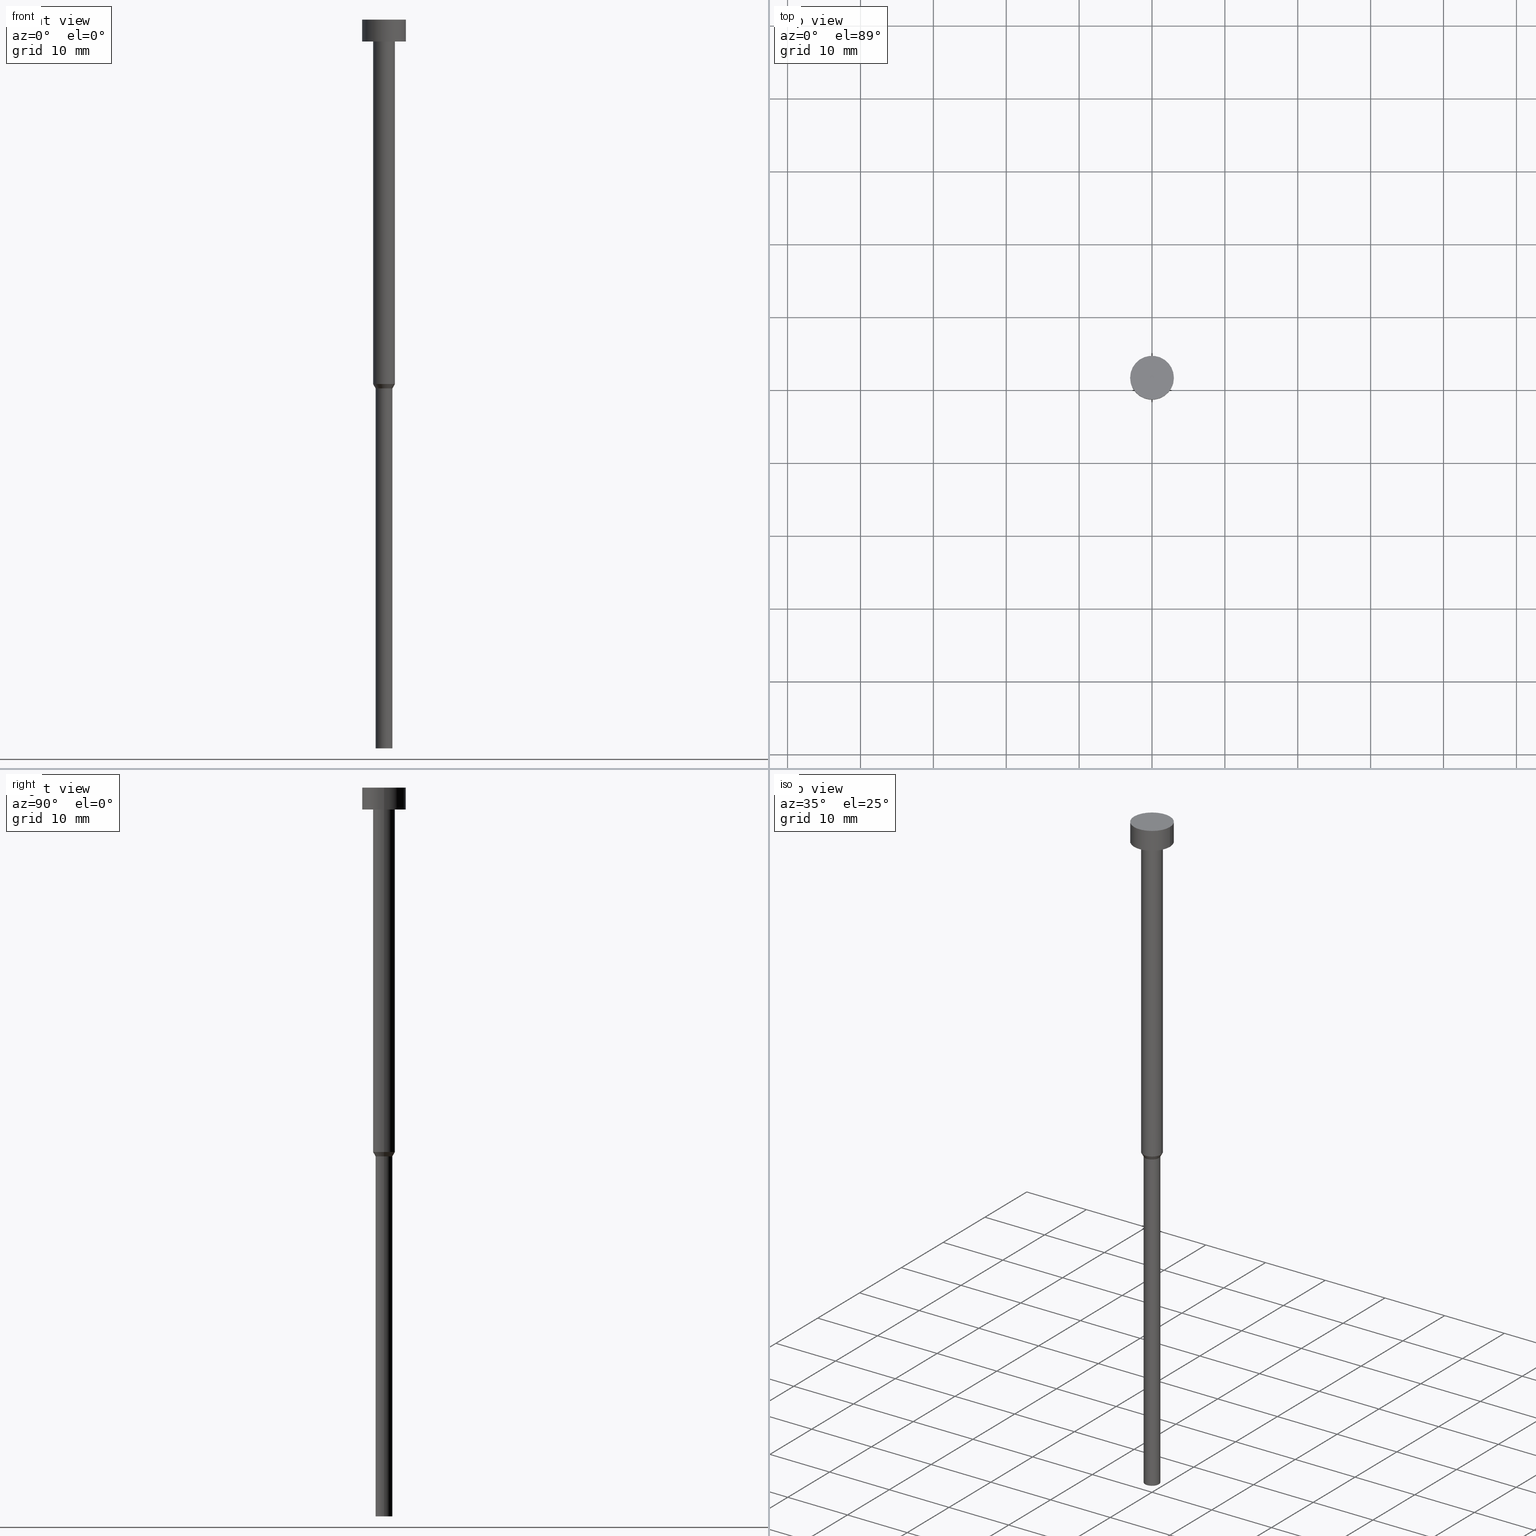
[diagram: canonical four-view strip — front | top / right | iso, engineering-drawing reading convention]
A machine part, canonical four-view strip (front | top / right | iso — engineering-drawing reading convention). The complete STEP part file that produces these views, byte-faithful:
ISO-10303-21;
HEADER;
FILE_DESCRIPTION (( 'STEP AP203' ),
    '1' );
FILE_NAME ('a1ff.STEP',
    '2023-02-13T10:55:24',
    ( '' ),
    ( '' ),
    'SwSTEP 2.0',
    'SolidWorks 2019',
    '' );
FILE_SCHEMA (( 'CONFIG_CONTROL_DESIGN' ));
ENDSEC;

DATA;
#1 = CC_DESIGN_PERSON_AND_ORGANIZATION_ASSIGNMENT ( #330, #200, ( #242 ) ) ;
#2 = PERSON_AND_ORGANIZATION_ROLE ( 'creator' ) ;
#3 = ADVANCED_FACE ( 'NONE', ( #328 ), #60, .T. ) ;
#4 = CARTESIAN_POINT ( 'NONE',  ( 1.149999999999999911, 0.000000000000000000, -100.0000000000000000 ) ) ;
#5 = VECTOR ( 'NONE', #156, 1000.000000000000000 ) ;
#6 = ORIENTED_EDGE ( 'NONE', *, *, #85, .T. ) ;
#7 = EDGE_LOOP ( 'NONE', ( #204, #314, #118, #327 ) ) ;
#8 = CARTESIAN_POINT ( 'NONE',  ( -1.149999999999999911, 1.408343819019456028E-16, -100.0000000000000000 ) ) ;
#9 = APPROVAL ( #315, 'NEUR�EN�' ) ;
#10 = AXIS2_PLACEMENT_3D ( 'NONE', #54, #140, #324 ) ;
#11 = CLOSED_SHELL ( 'NONE', ( #313, #143, #3, #17, #349, #323, #277, #263, #343, #246, #155 ) ) ;
#12 = ORIENTED_EDGE ( 'NONE', *, *, #31, .F. ) ;
#13 = DIRECTION ( 'NONE',  ( -0.000000000000000000, -0.000000000000000000, 1.000000000000000000 ) ) ;
#14 = FACE_OUTER_BOUND ( 'NONE', #305, .T. ) ;
#15 = ORIENTED_EDGE ( 'NONE', *, *, #318, .T. ) ;
#16 = DIRECTION ( 'NONE',  ( -0.000000000000000000, -0.000000000000000000, 1.000000000000000000 ) ) ;
#17 = ADVANCED_FACE ( 'NONE', ( #88 ), #306, .T. ) ;
#18 = SHAPE_DEFINITION_REPRESENTATION ( #150, #237 ) ;
#19 = CARTESIAN_POINT ( 'NONE',  ( 0.000000000000000000, 0.000000000000000000, -50.60621778264910375 ) ) ;
#20 = CARTESIAN_POINT ( 'NONE',  ( 1.149999999999999911, 0.000000000000000000, -50.60621778264910375 ) ) ;
#21 = CC_DESIGN_PERSON_AND_ORGANIZATION_ASSIGNMENT ( #108, #186, ( #149 ) ) ;
#22 = AXIS2_PLACEMENT_3D ( 'NONE', #131, #75, #257 ) ;
#23 = DATE_AND_TIME ( #48, #332 ) ;
#24 = FACE_OUTER_BOUND ( 'NONE', #273, .T. ) ;
#25 = APPROVAL_ROLE ( '' ) ;
#26 = COORDINATED_UNIVERSAL_TIME_OFFSET ( 1, 0, .AHEAD. ) ;
#27 = EDGE_CURVE ( 'NONE', #32, #310, #51, .T. ) ;
#28 = COORDINATED_UNIVERSAL_TIME_OFFSET ( 1, 0, .AHEAD. ) ;
#29 = CIRCLE ( 'NONE', #300, 1.500000000000000000 ) ;
#30 = CIRCLE ( 'NONE', #342, 1.500000000000000000 ) ;
#31 = EDGE_CURVE ( 'NONE', #76, #115, #296, .T. ) ;
#32 = VERTEX_POINT ( 'NONE', #353 ) ;
#33 = ORIENTED_EDGE ( 'NONE', *, *, #134, .T. ) ;
#34 = EDGE_LOOP ( 'NONE', ( #137, #167, #112, #173 ) ) ;
#35 = VERTEX_POINT ( 'NONE', #238 ) ;
#36 = EDGE_CURVE ( 'NONE', #151, #281, #153, .T. ) ;
#37 = ORIENTED_EDGE ( 'NONE', *, *, #270, .T. ) ;
#38 = DIRECTION ( 'NONE',  ( 1.000000000000000000, 0.000000000000000000, 0.000000000000000000 ) ) ;
#39 = CARTESIAN_POINT ( 'NONE',  ( 0.000000000000000000, 0.000000000000000000, -3.000000000000000888 ) ) ;
#40 = AXIS2_PLACEMENT_3D ( 'NONE', #251, #96, #236 ) ;
#41 = ORIENTED_EDGE ( 'NONE', *, *, #206, .T. ) ;
#42 = APPLICATION_CONTEXT ( 'configuration controlled 3d designs of mechanical parts and assemblies' ) ;
#43 = CARTESIAN_POINT ( 'NONE',  ( 0.000000000000000000, 0.000000000000000000, 0.000000000000000000 ) ) ;
#44 = CIRCLE ( 'NONE', #126, 3.000000000000000000 ) ;
#45 = CC_DESIGN_APPROVAL ( #63, ( #149 ) ) ;
#46 = DIRECTION ( 'NONE',  ( -0.000000000000000000, -0.000000000000000000, 1.000000000000000000 ) ) ;
#47 = CARTESIAN_POINT ( 'NONE',  ( 0.000000000000000000, 0.000000000000000000, -3.000000000000000888 ) ) ;
#48 = CALENDAR_DATE ( 2023, 13, 2 ) ;
#49 = DIRECTION ( 'NONE',  ( 1.000000000000000000, 0.000000000000000000, 0.000000000000000000 ) ) ;
#50 = LINE ( 'NONE', #107, #326 ) ;
#51 = CIRCLE ( 'NONE', #235, 3.000000000000000000 ) ;
#52 = AXIS2_PLACEMENT_3D ( 'NONE', #302, #117, #203 ) ;
#53 = EDGE_CURVE ( 'NONE', #176, #32, #350, .T. ) ;
#54 = CARTESIAN_POINT ( 'NONE',  ( 0.000000000000000000, 0.000000000000000000, -50.00000000000000000 ) ) ;
#55 = DIRECTION ( 'NONE',  ( -0.000000000000000000, -0.000000000000000000, 1.000000000000000000 ) ) ;
#56 = PERSON_AND_ORGANIZATION ( #79, #227 ) ;
#57 = AXIS2_PLACEMENT_3D ( 'NONE', #154, #16, #72 ) ;
#58 = CYLINDRICAL_SURFACE ( 'NONE', #195, 1.149999999999999911 ) ;
#59 = LOCAL_TIME ( 11, 55, 24.00000000000000000, #26 ) ;
#60 = CONICAL_SURFACE ( 'NONE', #341, 1.500000000000000000, 0.5235987755983008141 ) ;
#61 = DATE_AND_TIME ( #304, #286 ) ;
#62 = ORIENTED_EDGE ( 'NONE', *, *, #36, .T. ) ;
#63 = APPROVAL ( #219, 'NEUR�EN�' ) ;
#64 = CARTESIAN_POINT ( 'NONE',  ( 0.000000000000000000, 0.000000000000000000, 0.000000000000000000 ) ) ;
#65 = CARTESIAN_POINT ( 'NONE',  ( 0.000000000000000000, 0.000000000000000000, -50.60621778264910375 ) ) ;
#66 = PERSON_AND_ORGANIZATION_ROLE ( 'classification_officer' ) ;
#67 = FACE_OUTER_BOUND ( 'NONE', #229, .T. ) ;
#68 = ORIENTED_EDGE ( 'NONE', *, *, #77, .T. ) ;
#69 = CARTESIAN_POINT ( 'NONE',  ( 0.000000000000000000, 0.000000000000000000, 0.000000000000000000 ) ) ;
#70 = AXIS2_PLACEMENT_3D ( 'NONE', #64, #132, #338 ) ;
#71 = ORIENTED_EDGE ( 'NONE', *, *, #270, .F. ) ;
#72 = DIRECTION ( 'NONE',  ( 1.000000000000000000, 0.000000000000000000, 0.000000000000000000 ) ) ;
#73 = CARTESIAN_POINT ( 'NONE',  ( 1.500000000000000000, 0.000000000000000000, -3.000000000000000888 ) ) ;
#74 = DIRECTION ( 'NONE',  ( 1.000000000000000000, 0.000000000000000000, 0.000000000000000000 ) ) ;
#75 = DIRECTION ( 'NONE',  ( -0.000000000000000000, -0.000000000000000000, 1.000000000000000000 ) ) ;
#76 = VERTEX_POINT ( 'NONE', #182 ) ;
#77 = EDGE_CURVE ( 'NONE', #95, #310, #291, .T. ) ;
#78 = CC_DESIGN_SECURITY_CLASSIFICATION ( #93, ( #242 ) ) ;
#79 = PERSON ( 'NEUR�EN�', 'NEUR�EN�', 'NEUR�EN�', ('NEUR�EN�'), ('NEUR�EN�'), ('NEUR�EN�') ) ;
#80 = DIRECTION ( 'NONE',  ( -0.000000000000000000, -0.000000000000000000, 1.000000000000000000 ) ) ;
#81 = COORDINATED_UNIVERSAL_TIME_OFFSET ( 1, 0, .AHEAD. ) ;
#82 = PERSON_AND_ORGANIZATION_ROLE ( 'design_owner' ) ;
#83 = EDGE_CURVE ( 'NONE', #334, #76, #50, .T. ) ;
#84 = ORIENTED_EDGE ( 'NONE', *, *, #287, .F. ) ;
#85 = EDGE_CURVE ( 'NONE', #95, #176, #266, .T. ) ;
#86 = SECURITY_CLASSIFICATION_LEVEL ( 'unclassified' ) ;
#87 = ORIENTED_EDGE ( 'NONE', *, *, #307, .T. ) ;
#88 = FACE_OUTER_BOUND ( 'NONE', #201, .T. ) ;
#89 =( GEOMETRIC_REPRESENTATION_CONTEXT ( 3 ) GLOBAL_UNCERTAINTY_ASSIGNED_CONTEXT ( ( #187 ) ) GLOBAL_UNIT_ASSIGNED_CONTEXT ( ( #253, #114, #308 ) ) REPRESENTATION_CONTEXT ( 'NONE', 'WORKASPACE' ) );
#90 = DIRECTION ( 'NONE',  ( 1.000000000000000000, 0.000000000000000000, 0.000000000000000000 ) ) ;
#91 = CIRCLE ( 'NONE', #283, 1.500000000000000000 ) ;
#92 = CARTESIAN_POINT ( 'NONE',  ( 1.500000000000000000, 0.000000000000000000, 0.000000000000000000 ) ) ;
#93 = SECURITY_CLASSIFICATION ( '', '', #86 ) ;
#94 = ORIENTED_EDGE ( 'NONE', *, *, #77, .F. ) ;
#95 = VERTEX_POINT ( 'NONE', #230 ) ;
#96 = DIRECTION ( 'NONE',  ( -0.000000000000000000, -0.000000000000000000, 1.000000000000000000 ) ) ;
#97 = PRODUCT_RELATED_PRODUCT_CATEGORY ( 'detail', '', ( #202 ) ) ;
#98 = ORIENTED_EDGE ( 'NONE', *, *, #190, .F. ) ;
#99 = DIRECTION ( 'NONE',  ( 1.000000000000000000, 0.000000000000000000, 0.000000000000000000 ) ) ;
#100 = CARTESIAN_POINT ( 'NONE',  ( 0.000000000000000000, 0.000000000000000000, -3.673940397442059868E-16 ) ) ;
#101 = DIRECTION ( 'NONE',  ( -0.000000000000000000, -0.000000000000000000, 1.000000000000000000 ) ) ;
#102 = EDGE_CURVE ( 'NONE', #76, #281, #340, .T. ) ;
#103 = EDGE_LOOP ( 'NONE', ( #272, #71 ) ) ;
#104 = CYLINDRICAL_SURFACE ( 'NONE', #133, 3.000000000000000000 ) ;
#105 = VECTOR ( 'NONE', #163, 1000.000000000000000 ) ;
#106 = APPROVAL_DATE_TIME ( #317, #63 ) ;
#107 = CARTESIAN_POINT ( 'NONE',  ( -1.149999999999999911, 1.408343819019456028E-16, 0.000000000000000000 ) ) ;
#108 = PERSON_AND_ORGANIZATION ( #79, #227 ) ;
#109 = ORIENTED_EDGE ( 'NONE', *, *, #53, .T. ) ;
#110 = AXIS2_PLACEMENT_3D ( 'NONE', #65, #279, #325 ) ;
#111 = APPROVAL_DATE_TIME ( #280, #217 ) ;
#112 = ORIENTED_EDGE ( 'NONE', *, *, #188, .T. ) ;
#113 = AXIS2_PLACEMENT_3D ( 'NONE', #129, #175, #38 ) ;
#114 =( NAMED_UNIT ( * ) PLANE_ANGLE_UNIT ( ) SI_UNIT ( $, .RADIAN. ) );
#115 = VERTEX_POINT ( 'NONE', #20 ) ;
#116 = DIRECTION ( 'NONE',  ( -0.000000000000000000, -0.000000000000000000, 1.000000000000000000 ) ) ;
#117 = DIRECTION ( 'NONE',  ( 0.000000000000000000, 0.000000000000000000, -1.000000000000000000 ) ) ;
#118 = ORIENTED_EDGE ( 'NONE', *, *, #36, .F. ) ;
#119 = PLANE ( 'NONE',  #120 ) ;
#120 = AXIS2_PLACEMENT_3D ( 'NONE', #225, #249, #223 ) ;
#121 = MECHANICAL_CONTEXT ( 'NONE', #211, 'mechanical' ) ;
#122 = CARTESIAN_POINT ( 'NONE',  ( 1.500000000000000000, 0.000000000000000000, -50.00000000000000000 ) ) ;
#123 = DIRECTION ( 'NONE',  ( 1.000000000000000000, 0.000000000000000000, 0.000000000000000000 ) ) ;
#124 = EDGE_LOOP ( 'NONE', ( #33, #250 ) ) ;
#125 = DIRECTION ( 'NONE',  ( 1.000000000000000000, 0.000000000000000000, 0.000000000000000000 ) ) ;
#126 = AXIS2_PLACEMENT_3D ( 'NONE', #47, #316, #214 ) ;
#127 = APPROVAL_PERSON_ORGANIZATION ( #239, #63, #25 ) ;
#128 = ORIENTED_EDGE ( 'NONE', *, *, #295, .T. ) ;
#129 = CARTESIAN_POINT ( 'NONE',  ( 0.000000000000000000, 0.000000000000000000, -1.836970198721029934E-16 ) ) ;
#130 = CC_DESIGN_PERSON_AND_ORGANIZATION_ASSIGNMENT ( #231, #82, ( #202 ) ) ;
#131 = CARTESIAN_POINT ( 'NONE',  ( 0.000000000000000000, 0.000000000000000000, -3.000000000000000888 ) ) ;
#132 = DIRECTION ( 'NONE',  ( -0.000000000000000000, -0.000000000000000000, 1.000000000000000000 ) ) ;
#133 = AXIS2_PLACEMENT_3D ( 'NONE', #43, #339, #347 ) ;
#134 = EDGE_CURVE ( 'NONE', #310, #32, #221, .T. ) ;
#135 = CARTESIAN_POINT ( 'NONE',  ( 0.000000000000000000, 0.000000000000000000, -100.0000000000000000 ) ) ;
#136 = APPROVAL_STATUS ( 'not_yet_approved' ) ;
#137 = ORIENTED_EDGE ( 'NONE', *, *, #102, .F. ) ;
#138 = LINE ( 'NONE', #241, #252 ) ;
#139 = CARTESIAN_POINT ( 'NONE',  ( -3.000000000000000000, 3.673940397442059868E-16, 0.000000000000000000 ) ) ;
#140 = DIRECTION ( 'NONE',  ( -0.000000000000000000, -0.000000000000000000, 1.000000000000000000 ) ) ;
#141 = AXIS2_PLACEMENT_3D ( 'NONE', #319, #46, #183 ) ;
#142 = PERSON_AND_ORGANIZATION ( #79, #227 ) ;
#143 = ADVANCED_FACE ( 'NONE', ( #348 ), #256, .T. ) ;
#144 = ORIENTED_EDGE ( 'NONE', *, *, #83, .T. ) ;
#145 = EDGE_LOOP ( 'NONE', ( #128, #168 ) ) ;
#146 = CC_DESIGN_PERSON_AND_ORGANIZATION_ASSIGNMENT ( #56, #2, ( #242 ) ) ;
#147 = AXIS2_PLACEMENT_3D ( 'NONE', #100, #13, #207 ) ;
#148 = ORIENTED_EDGE ( 'NONE', *, *, #53, .F. ) ;
#149 = PRODUCT_DEFINITION ( 'NEZN�M�', '', #242, #162 ) ;
#150 = PRODUCT_DEFINITION_SHAPE ( 'NONE', 'NONE',  #149 ) ;
#151 = VERTEX_POINT ( 'NONE', #122 ) ;
#152 = CARTESIAN_POINT ( 'NONE',  ( -3.000000000000000000, 3.673940397442059868E-16, -3.000000000000000888 ) ) ;
#153 = CIRCLE ( 'NONE', #10, 1.500000000000000000 ) ;
#154 = CARTESIAN_POINT ( 'NONE',  ( 0.000000000000000000, 0.000000000000000000, 0.000000000000000000 ) ) ;
#155 = ADVANCED_FACE ( 'NONE', ( #212 ), #259, .T. ) ;
#156 = DIRECTION ( 'NONE',  ( -0.000000000000000000, -0.000000000000000000, 1.000000000000000000 ) ) ;
#157 = DIRECTION ( 'NONE',  ( -0.000000000000000000, -0.000000000000000000, 1.000000000000000000 ) ) ;
#158 = FACE_OUTER_BOUND ( 'NONE', #34, .T. ) ;
#159 = CC_DESIGN_DATE_AND_TIME_ASSIGNMENT ( #23, #161, ( #149 ) ) ;
#160 = LOCAL_TIME ( 11, 55, 24.00000000000000000, #354 ) ;
#161 = DATE_TIME_ROLE ( 'creation_date' ) ;
#162 = DESIGN_CONTEXT ( 'detailed design', #42, 'design' ) ;
#163 = DIRECTION ( 'NONE',  ( -0.000000000000000000, -0.000000000000000000, 1.000000000000000000 ) ) ;
#164 = DIRECTION ( 'NONE',  ( -0.000000000000000000, -0.000000000000000000, 1.000000000000000000 ) ) ;
#165 = CC_DESIGN_DATE_AND_TIME_ASSIGNMENT ( #61, #172, ( #93 ) ) ;
#166 = AXIS2_PLACEMENT_3D ( 'NONE', #19, #164, #215 ) ;
#167 = ORIENTED_EDGE ( 'NONE', *, *, #31, .T. ) ;
#168 = ORIENTED_EDGE ( 'NONE', *, *, #190, .T. ) ;
#169 = LOCAL_TIME ( 11, 55, 24.00000000000000000, #210 ) ;
#170 = CARTESIAN_POINT ( 'NONE',  ( 0.000000000000000000, 0.000000000000000000, 0.000000000000000000 ) ) ;
#171 = DIRECTION ( 'NONE',  ( -0.000000000000000000, -0.000000000000000000, 1.000000000000000000 ) ) ;
#172 = DATE_TIME_ROLE ( 'classification_date' ) ;
#173 = ORIENTED_EDGE ( 'NONE', *, *, #318, .F. ) ;
#174 = DIRECTION ( 'NONE',  ( -0.000000000000000000, -0.000000000000000000, 1.000000000000000000 ) ) ;
#175 = DIRECTION ( 'NONE',  ( 0.000000000000000000, -0.000000000000000000, 1.000000000000000000 ) ) ;
#176 = VERTEX_POINT ( 'NONE', #152 ) ;
#177 = DIRECTION ( 'NONE',  ( 0.5000000000000016653, 0.000000000000000000, 0.8660254037844377084 ) ) ;
#178 = DIRECTION ( 'NONE',  ( -0.000000000000000000, -0.000000000000000000, 1.000000000000000000 ) ) ;
#179 = EDGE_CURVE ( 'NONE', #334, #355, #213, .T. ) ;
#180 = ORIENTED_EDGE ( 'NONE', *, *, #295, .F. ) ;
#181 = LINE ( 'NONE', #344, #5 ) ;
#182 = CARTESIAN_POINT ( 'NONE',  ( -1.149999999999999911, 1.408343819019456028E-16, -50.60621778264910375 ) ) ;
#183 = DIRECTION ( 'NONE',  ( 1.000000000000000000, 0.000000000000000000, 0.000000000000000000 ) ) ;
#184 = ORIENTED_EDGE ( 'NONE', *, *, #179, .F. ) ;
#185 = VECTOR ( 'NONE', #177, 1000.000000000000000 ) ;
#186 = PERSON_AND_ORGANIZATION_ROLE ( 'creator' ) ;
#187 = UNCERTAINTY_MEASURE_WITH_UNIT (LENGTH_MEASURE( 1.000000000000000082E-05 ), #253, 'distance_accuracy_value', 'NONE');
#188 = EDGE_CURVE ( 'NONE', #115, #151, #234, .T. ) ;
#189 = DIRECTION ( 'NONE',  ( -0.000000000000000000, -0.000000000000000000, 1.000000000000000000 ) ) ;
#190 = EDGE_CURVE ( 'NONE', #35, #233, #91, .T. ) ;
#191 = ORIENTED_EDGE ( 'NONE', *, *, #83, .F. ) ;
#192 = ORIENTED_EDGE ( 'NONE', *, *, #307, .F. ) ;
#193 = FACE_OUTER_BOUND ( 'NONE', #103, .T. ) ;
#194 = PERSON_AND_ORGANIZATION ( #79, #227 ) ;
#195 = AXIS2_PLACEMENT_3D ( 'NONE', #69, #274, #90 ) ;
#196 = ORIENTED_EDGE ( 'NONE', *, *, #255, .T. ) ;
#197 = CIRCLE ( 'NONE', #333, 1.149999999999999911 ) ;
#198 = AXIS2_PLACEMENT_3D ( 'NONE', #170, #247, #331 ) ;
#199 = DIRECTION ( 'NONE',  ( -0.000000000000000000, -0.000000000000000000, 1.000000000000000000 ) ) ;
#200 = PERSON_AND_ORGANIZATION_ROLE ( 'design_supplier' ) ;
#201 = EDGE_LOOP ( 'NONE', ( #258, #144, #243, #285 ) ) ;
#202 = PRODUCT ( 'a1ff', 'a1ff', '', ( #121 ) ) ;
#203 = DIRECTION ( 'NONE',  ( -1.000000000000000000, 0.000000000000000000, -0.000000000000000000 ) ) ;
#204 = ORIENTED_EDGE ( 'NONE', *, *, #226, .T. ) ;
#205 = EDGE_LOOP ( 'NONE', ( #148, #37, #68, #220 ) ) ;
#206 = EDGE_CURVE ( 'NONE', #281, #35, #138, .T. ) ;
#207 = DIRECTION ( 'NONE',  ( 1.000000000000000000, 0.000000000000000000, 0.000000000000000000 ) ) ;
#208 = DIRECTION ( 'NONE',  ( 1.000000000000000000, 0.000000000000000000, 0.000000000000000000 ) ) ;
#209 = CARTESIAN_POINT ( 'NONE',  ( 0.000000000000000000, 0.000000000000000000, -3.000000000000000888 ) ) ;
#210 = COORDINATED_UNIVERSAL_TIME_OFFSET ( 1, 0, .AHEAD. ) ;
#211 = APPLICATION_CONTEXT ( 'configuration controlled 3d designs of mechanical parts and assemblies' ) ;
#212 = FACE_OUTER_BOUND ( 'NONE', #124, .T. ) ;
#213 = CIRCLE ( 'NONE', #40, 1.149999999999999911 ) ;
#214 = DIRECTION ( 'NONE',  ( 1.000000000000000000, 0.000000000000000000, 0.000000000000000000 ) ) ;
#215 = DIRECTION ( 'NONE',  ( 1.000000000000000000, 0.000000000000000000, 0.000000000000000000 ) ) ;
#216 = CYLINDRICAL_SURFACE ( 'NONE', #303, 1.500000000000000000 ) ;
#217 = APPROVAL ( #136, 'NEUR�EN�' ) ;
#218 = CC_DESIGN_APPROVAL ( #217, ( #242 ) ) ;
#219 = APPROVAL_STATUS ( 'not_yet_approved' ) ;
#220 = ORIENTED_EDGE ( 'NONE', *, *, #27, .F. ) ;
#221 = CIRCLE ( 'NONE', #147, 3.000000000000000000 ) ;
#222 = ORIENTED_EDGE ( 'NONE', *, *, #134, .F. ) ;
#223 = DIRECTION ( 'NONE',  ( -1.000000000000000000, 0.000000000000000000, -0.000000000000000000 ) ) ;
#224 = EDGE_LOOP ( 'NONE', ( #62, #41, #180, #192 ) ) ;
#225 = CARTESIAN_POINT ( 'NONE',  ( 0.000000000000000000, -3.000000000000000000, -3.000000000000000888 ) ) ;
#226 = EDGE_CURVE ( 'NONE', #115, #76, #311, .T. ) ;
#227 = ORGANIZATION ( 'NEUR�EN�', 'NEUR�EN�', '' ) ;
#228 = VECTOR ( 'NONE', #171, 1000.000000000000000 ) ;
#229 = EDGE_LOOP ( 'NONE', ( #84, #184 ) ) ;
#230 = CARTESIAN_POINT ( 'NONE',  ( 3.000000000000000000, 0.000000000000000000, -3.000000000000000888 ) ) ;
#231 = PERSON_AND_ORGANIZATION ( #79, #227 ) ;
#232 = CARTESIAN_POINT ( 'NONE',  ( 0.000000000000000000, 0.000000000000000000, 0.000000000000000000 ) ) ;
#233 = VERTEX_POINT ( 'NONE', #73 ) ;
#234 = LINE ( 'NONE', #337, #185 ) ;
#235 = AXIS2_PLACEMENT_3D ( 'NONE', #284, #101, #208 ) ;
#236 = DIRECTION ( 'NONE',  ( 1.000000000000000000, 0.000000000000000000, 0.000000000000000000 ) ) ;
#237 = ADVANCED_BREP_SHAPE_REPRESENTATION ( 'a1ff', ( #292, #198 ), #89 ) ;
#238 = CARTESIAN_POINT ( 'NONE',  ( -1.500000000000000000, 1.836970198721029934E-16, -3.000000000000000888 ) ) ;
#239 = PERSON_AND_ORGANIZATION ( #79, #227 ) ;
#240 = APPROVAL_ROLE ( '' ) ;
#241 = CARTESIAN_POINT ( 'NONE',  ( -1.500000000000000000, 1.836970198721029934E-16, 0.000000000000000000 ) ) ;
#242 = PRODUCT_DEFINITION_FORMATION_WITH_SPECIFIED_SOURCE ( 'LIBOVOLN�', '', #202, .NOT_KNOWN. ) ;
#243 = ORIENTED_EDGE ( 'NONE', *, *, #226, .F. ) ;
#244 = PLANE ( 'NONE',  #52 ) ;
#245 = APPLICATION_PROTOCOL_DEFINITION ( 'international standard', 'config_control_design', 1994, #211 ) ;
#246 = ADVANCED_FACE ( 'NONE', ( #345 ), #104, .T. ) ;
#247 = DIRECTION ( 'NONE',  ( 0.000000000000000000, 0.000000000000000000, 1.000000000000000000 ) ) ;
#248 = ORIENTED_EDGE ( 'NONE', *, *, #179, .T. ) ;
#249 = DIRECTION ( 'NONE',  ( 0.000000000000000000, 0.000000000000000000, -1.000000000000000000 ) ) ;
#250 = ORIENTED_EDGE ( 'NONE', *, *, #27, .T. ) ;
#251 = CARTESIAN_POINT ( 'NONE',  ( 0.000000000000000000, 0.000000000000000000, -100.0000000000000000 ) ) ;
#252 = VECTOR ( 'NONE', #116, 1000.000000000000000 ) ;
#253 =( LENGTH_UNIT ( ) NAMED_UNIT ( * ) SI_UNIT ( .MILLI., .METRE. ) );
#254 = CYLINDRICAL_SURFACE ( 'NONE', #297, 3.000000000000000000 ) ;
#255 = EDGE_CURVE ( 'NONE', #355, #115, #181, .T. ) ;
#256 = CYLINDRICAL_SURFACE ( 'NONE', #57, 1.500000000000000000 ) ;
#257 = DIRECTION ( 'NONE',  ( 1.000000000000000000, 0.000000000000000000, 0.000000000000000000 ) ) ;
#258 = ORIENTED_EDGE ( 'NONE', *, *, #287, .T. ) ;
#259 = PLANE ( 'NONE',  #113 ) ;
#260 = APPROVAL_PERSON_ORGANIZATION ( #142, #9, #265 ) ;
#261 = VECTOR ( 'NONE', #336, 1000.000000000000000 ) ;
#262 = CARTESIAN_POINT ( 'NONE',  ( -1.500000000000000000, 1.836970198721029934E-16, -50.00000000000000000 ) ) ;
#263 = ADVANCED_FACE ( 'NONE', ( #24 ), #216, .T. ) ;
#264 = CARTESIAN_POINT ( 'NONE',  ( -1.500000000000000000, 1.836970198721029934E-16, -50.00000000000000000 ) ) ;
#265 = APPROVAL_ROLE ( '' ) ;
#266 = CIRCLE ( 'NONE', #22, 3.000000000000000000 ) ;
#267 = PERSON_AND_ORGANIZATION ( #79, #227 ) ;
#268 = DIRECTION ( 'NONE',  ( 1.000000000000000000, 0.000000000000000000, 0.000000000000000000 ) ) ;
#269 = DIRECTION ( 'NONE',  ( 1.000000000000000000, 0.000000000000000000, 0.000000000000000000 ) ) ;
#270 = EDGE_CURVE ( 'NONE', #176, #95, #44, .T. ) ;
#271 = CC_DESIGN_APPROVAL ( #9, ( #93 ) ) ;
#272 = ORIENTED_EDGE ( 'NONE', *, *, #85, .F. ) ;
#273 = EDGE_LOOP ( 'NONE', ( #301, #15, #87, #98 ) ) ;
#274 = DIRECTION ( 'NONE',  ( -0.000000000000000000, -0.000000000000000000, 1.000000000000000000 ) ) ;
#275 = VECTOR ( 'NONE', #80, 1000.000000000000000 ) ;
#276 = EDGE_LOOP ( 'NONE', ( #6, #109, #222, #94 ) ) ;
#277 = ADVANCED_FACE ( 'NONE', ( #158 ), #288, .T. ) ;
#278 = CARTESIAN_POINT ( 'NONE',  ( 0.000000000000000000, 0.000000000000000000, -50.00000000000000000 ) ) ;
#279 = DIRECTION ( 'NONE',  ( -0.000000000000000000, -0.000000000000000000, 1.000000000000000000 ) ) ;
#280 = DATE_AND_TIME ( #320, #160 ) ;
#281 = VERTEX_POINT ( 'NONE', #264 ) ;
#282 = CC_DESIGN_PERSON_AND_ORGANIZATION_ASSIGNMENT ( #194, #66, ( #93 ) ) ;
#283 = AXIS2_PLACEMENT_3D ( 'NONE', #39, #189, #268 ) ;
#284 = CARTESIAN_POINT ( 'NONE',  ( 0.000000000000000000, 0.000000000000000000, -3.673940397442059868E-16 ) ) ;
#285 = ORIENTED_EDGE ( 'NONE', *, *, #255, .F. ) ;
#286 = LOCAL_TIME ( 11, 55, 24.00000000000000000, #28 ) ;
#287 = EDGE_CURVE ( 'NONE', #355, #334, #197, .T. ) ;
#288 = CONICAL_SURFACE ( 'NONE', #141, 1.500000000000000000, 0.5235987755983008141 ) ;
#289 = APPLICATION_PROTOCOL_DEFINITION ( 'international standard', 'config_control_design', 1994, #42 ) ;
#290 = CARTESIAN_POINT ( 'NONE',  ( 0.000000000000000000, 0.000000000000000000, 0.000000000000000000 ) ) ;
#291 = LINE ( 'NONE', #298, #105 ) ;
#292 = MANIFOLD_SOLID_BREP ( 'Rotovat1', #11 ) ;
#293 = APPROVAL_DATE_TIME ( #352, #9 ) ;
#294 = DIRECTION ( 'NONE',  ( -0.000000000000000000, -0.000000000000000000, 1.000000000000000000 ) ) ;
#295 = EDGE_CURVE ( 'NONE', #233, #35, #29, .T. ) ;
#296 = CIRCLE ( 'NONE', #166, 1.149999999999999911 ) ;
#297 = AXIS2_PLACEMENT_3D ( 'NONE', #232, #199, #123 ) ;
#298 = CARTESIAN_POINT ( 'NONE',  ( 3.000000000000000000, 0.000000000000000000, 0.000000000000000000 ) ) ;
#299 = CARTESIAN_POINT ( 'NONE',  ( 0.000000000000000000, 0.000000000000000000, -50.00000000000000000 ) ) ;
#300 = AXIS2_PLACEMENT_3D ( 'NONE', #209, #312, #74 ) ;
#301 = ORIENTED_EDGE ( 'NONE', *, *, #206, .F. ) ;
#302 = CARTESIAN_POINT ( 'NONE',  ( 0.000000000000000000, 0.000000000000000000, -100.0000000000000000 ) ) ;
#303 = AXIS2_PLACEMENT_3D ( 'NONE', #290, #294, #49 ) ;
#304 = CALENDAR_DATE ( 2023, 13, 2 ) ;
#305 = EDGE_LOOP ( 'NONE', ( #191, #248, #196, #12 ) ) ;
#306 = CYLINDRICAL_SURFACE ( 'NONE', #70, 1.149999999999999911 ) ;
#307 = EDGE_CURVE ( 'NONE', #151, #233, #321, .T. ) ;
#308 =( NAMED_UNIT ( * ) SI_UNIT ( $, .STERADIAN. ) SOLID_ANGLE_UNIT ( ) );
#309 = CARTESIAN_POINT ( 'NONE',  ( 3.000000000000000000, 0.000000000000000000, -3.673940397442059868E-16 ) ) ;
#310 = VERTEX_POINT ( 'NONE', #309 ) ;
#311 = CIRCLE ( 'NONE', #110, 1.149999999999999911 ) ;
#312 = DIRECTION ( 'NONE',  ( -0.000000000000000000, -0.000000000000000000, 1.000000000000000000 ) ) ;
#313 = ADVANCED_FACE ( 'NONE', ( #335 ), #254, .T. ) ;
#314 = ORIENTED_EDGE ( 'NONE', *, *, #102, .T. ) ;
#315 = APPROVAL_STATUS ( 'not_yet_approved' ) ;
#316 = DIRECTION ( 'NONE',  ( -0.000000000000000000, -0.000000000000000000, 1.000000000000000000 ) ) ;
#317 = DATE_AND_TIME ( #351, #59 ) ;
#318 = EDGE_CURVE ( 'NONE', #281, #151, #30, .T. ) ;
#319 = CARTESIAN_POINT ( 'NONE',  ( 0.000000000000000000, 0.000000000000000000, -50.00000000000000000 ) ) ;
#320 = CALENDAR_DATE ( 2023, 13, 2 ) ;
#321 = LINE ( 'NONE', #92, #228 ) ;
#322 = APPROVAL_PERSON_ORGANIZATION ( #267, #217, #240 ) ;
#323 = ADVANCED_FACE ( 'NONE', ( #14 ), #58, .T. ) ;
#324 = DIRECTION ( 'NONE',  ( 1.000000000000000000, 0.000000000000000000, 0.000000000000000000 ) ) ;
#325 = DIRECTION ( 'NONE',  ( 1.000000000000000000, 0.000000000000000000, 0.000000000000000000 ) ) ;
#326 = VECTOR ( 'NONE', #157, 1000.000000000000000 ) ;
#327 = ORIENTED_EDGE ( 'NONE', *, *, #188, .F. ) ;
#328 = FACE_OUTER_BOUND ( 'NONE', #7, .T. ) ;
#329 = FACE_BOUND ( 'NONE', #145, .T. ) ;
#330 = PERSON_AND_ORGANIZATION ( #79, #227 ) ;
#331 = DIRECTION ( 'NONE',  ( 1.000000000000000000, 0.000000000000000000, 0.000000000000000000 ) ) ;
#332 = LOCAL_TIME ( 11, 55, 24.00000000000000000, #81 ) ;
#333 = AXIS2_PLACEMENT_3D ( 'NONE', #135, #178, #125 ) ;
#334 = VERTEX_POINT ( 'NONE', #8 ) ;
#335 = FACE_OUTER_BOUND ( 'NONE', #276, .T. ) ;
#336 = DIRECTION ( 'NONE',  ( -0.5000000000000016653, 6.123233995736786990E-17, 0.8660254037844377084 ) ) ;
#337 = CARTESIAN_POINT ( 'NONE',  ( 1.500000000000000000, 0.000000000000000000, -50.00000000000000000 ) ) ;
#338 = DIRECTION ( 'NONE',  ( 1.000000000000000000, 0.000000000000000000, 0.000000000000000000 ) ) ;
#339 = DIRECTION ( 'NONE',  ( -0.000000000000000000, -0.000000000000000000, 1.000000000000000000 ) ) ;
#340 = LINE ( 'NONE', #262, #261 ) ;
#341 = AXIS2_PLACEMENT_3D ( 'NONE', #299, #55, #269 ) ;
#342 = AXIS2_PLACEMENT_3D ( 'NONE', #278, #174, #99 ) ;
#343 = ADVANCED_FACE ( 'NONE', ( #329, #193 ), #119, .T. ) ;
#344 = CARTESIAN_POINT ( 'NONE',  ( 1.149999999999999911, 0.000000000000000000, 0.000000000000000000 ) ) ;
#345 = FACE_OUTER_BOUND ( 'NONE', #205, .T. ) ;
#346 = CALENDAR_DATE ( 2023, 13, 2 ) ;
#347 = DIRECTION ( 'NONE',  ( 1.000000000000000000, 0.000000000000000000, 0.000000000000000000 ) ) ;
#348 = FACE_OUTER_BOUND ( 'NONE', #224, .T. ) ;
#349 = ADVANCED_FACE ( 'NONE', ( #67 ), #244, .T. ) ;
#350 = LINE ( 'NONE', #139, #275 ) ;
#351 = CALENDAR_DATE ( 2023, 13, 2 ) ;
#352 = DATE_AND_TIME ( #346, #169 ) ;
#353 = CARTESIAN_POINT ( 'NONE',  ( -3.000000000000000000, 3.673940397442059868E-16, -3.673940397442059868E-16 ) ) ;
#354 = COORDINATED_UNIVERSAL_TIME_OFFSET ( 1, 0, .AHEAD. ) ;
#355 = VERTEX_POINT ( 'NONE', #4 ) ;
ENDSEC;
END-ISO-10303-21;
